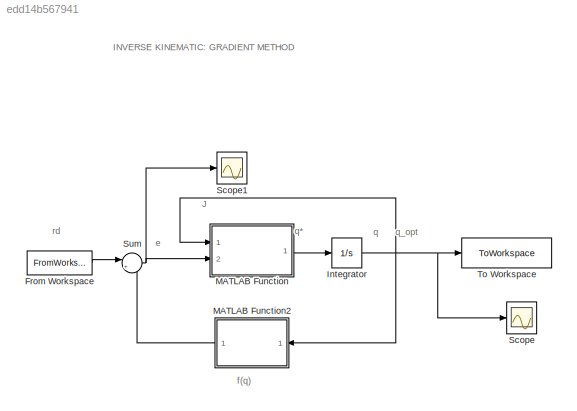
MODEL slx_edd14b567941
KIND model
CONFIG AbsTol = auto
CONFIG EnableMultiTasking = off
CONFIG FixedStep = auto
CONFIG MaxStep = auto
CONFIG MinStep = auto
CONFIG RelTol = 1e-3
CONFIG SampleTimeConstraint = Unconstrained
CONFIG Solver = VariableStepAuto
CONFIG SolverName = VariableStepAuto
CONFIG StartTime = 0.0
CONFIG StopTime = 6.0
BLOCK [FromWorkspace] From Workspace
  SampleTime = timeStep
  VariableName = r_d_polar_2RP
  ZeroCross = on
BLOCK [Integrator] Integrator
  InitialCondition = q_0_polar_2RP
  Ports = [1, 1]
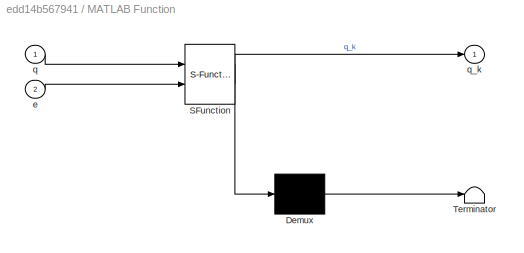
BLOCK [SubSystem] MATLAB Function
  ErrorFcn = Stateflow.Translate.translate
  PermitHierarchicalResolution = ExplicitOnly
  Ports = [2, 1]
  RequestExecContextInheritance = off
  SFBlockType = MATLAB Function
  TreatAsAtomicUnit = on
BLOCK [Demux] MATLAB Function/ Demux 
  Outputs = 1
  Ports = [1, 1]
BLOCK [S-Function] MATLAB Function/ SFunction 
  EnableBusSupport = on
  FunctionName = sf_sfun
  PortCounts = [2 2]
  Ports = [2, 2]
  SFcnIsStateOwnerBlock = off
  SFunctionDeploymentMode = off
  Tag = Stateflow S-Function 2
BLOCK [Terminator] MATLAB Function/ Terminator 
BLOCK [Inport] MATLAB Function/e
  IconDisplay = Port number
  Port = 2
BLOCK [Inport] MATLAB Function/q
  IconDisplay = Port number
BLOCK [Outport] MATLAB Function/q_k
  IconDisplay = Port number
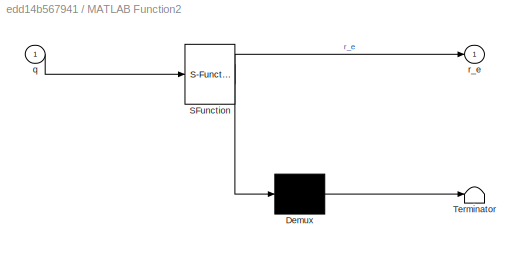
BLOCK [SubSystem] MATLAB Function2
  ErrorFcn = Stateflow.Translate.translate
  PermitHierarchicalResolution = ExplicitOnly
  Ports = [1, 1]
  RequestExecContextInheritance = off
  SFBlockType = MATLAB Function
  TreatAsAtomicUnit = on
BLOCK [Demux] MATLAB Function2/ Demux 
  Outputs = 1
  Ports = [1, 1]
BLOCK [S-Function] MATLAB Function2/ SFunction 
  EnableBusSupport = on
  FunctionName = sf_sfun
  PortCounts = [1 2]
  Ports = [1, 2]
  SFcnIsStateOwnerBlock = off
  SFunctionDeploymentMode = off
  Tag = Stateflow S-Function 3
BLOCK [Terminator] MATLAB Function2/ Terminator 
BLOCK [Inport] MATLAB Function2/q
  IconDisplay = Port number
BLOCK [Outport] MATLAB Function2/r_e
  IconDisplay = Port number
BLOCK [Scope] Scope
  Floating = off
  NumInputPorts = 1
  Ports = [1]
  ScopeSpecificationString = Simulink.scopes.TimeScopeBlockCfg('CurrentConfiguration', extmgr.ConfigurationSet(extmgr.Configuration('Core','General UI',true),extmgr.Configuration('Core','Source UI',true),extmgr.Configuration('Sources','WiredSimulink',true),extmgr.Configuration('Visuals','Time Domain',true,'SerializedDisplays',{struct('MinYLimReal','0.68769','MaxYLimReal','1.66892','YLabelReal','','MinYLimMag','0.68769','MaxYL...<+1360ch>
BLOCK [Scope] Scope1
  Floating = off
  NumInputPorts = 1
  Ports = [1]
  ScopeSpecificationString = Simulink.scopes.TimeScopeBlockCfg('CurrentConfiguration', extmgr.ConfigurationSet(extmgr.Configuration('Core','General UI',true),extmgr.Configuration('Core','Source UI',true),extmgr.Configuration('Sources','WiredSimulink',true,'DataLoggingVariableName','ScopeData1'),extmgr.Configuration('Visuals','Time Domain',true,'SerializedDisplays',{struct('MinYLimReal','-0.125','MaxYLimReal','1.125','YLabelRe...<+1368ch>
BLOCK [Sum] Sum
  IconShape = round
  InputSameDT = off
  Inputs = |+-
  OutDataTypeStr = Inherit: Inherit via internal rule
  Ports = [2, 1]
  SaturateOnIntegerOverflow = off
BLOCK [ToWorkspace] To Workspace
  FixptAsFi = on
  MaxDataPoints = inf
  Ports = [1]
  SampleTime = -1
  SaveFormat = Timeseries
  VariableName = q_polar_2RP
ANNOTATION (root): INVERSE KINEMATIC: GRADIENT METHOD
ANNOTATION (root): J
ANNOTATION (root): e
ANNOTATION (root): f(q)
ANNOTATION (root): q
ANNOTATION (root): q*
ANNOTATION (root): q_opt
ANNOTATION (root): rd
LINE From Workspace:1 -> Sum:1
NET Integrator:1 -> MATLAB Function2:1, MATLAB Function:1, Scope:1, To Workspace:1
LINE MATLAB Function2:1 -> Sum:2
LINE MATLAB Function:1 -> Integrator:1
NET Sum:1 -> MATLAB Function:2, Scope1:1
note: NET lines group one-source signal fan-out (src -> all destinations, sorted); 1:1 wires keep LINE
CHART MATLAB Function states=1 transitions=1
  STATE_LABEL 'eML_blk_kernel()'
  STATE_LABEL "SCRIPT:\nfunction q_k = J_r(q,e)\n% GRADIENT\nalpha =  0.7;\nJ_q = [-q(3)*sin(q(1))*sin(q(2)) q(3)*cos(q(1))*cos(q(2)) cos(q(1))*sin(q(2));\n    q(3)*cos(q(1))*sin(q(2)) q(3)*cos(q(2))*sin(q(1)) sin(q(1))*sin(q(2));\n    0 -q(3)*sin(q(2)) cos(q(2))];\nq_k = alpha * J_q' * e;\n\n% NEWTON\n% Jq = [-q(3)*sin(q(1))*sin(q(2)) q(3)*cos(q(1))*cos(q(2)) cos(q(1))*sin(q(2));\n%     q(3)*cos(q(1))*sin(q(2)) q(3)*cos(q...<+93ch>"
CHART MATLAB Function2 states=1 transitions=1
  STATE_LABEL 'eML_blk_kernel()'
  STATE_LABEL 'SCRIPT:\nfunction r_e = F_r(q)\n%POLAR ROBOT (2R P)\nr_e = [q(3)*cos(q(1))*sin(q(2));\n    q(3)*sin(q(1))*sin(q(2));\n    q(3)*cos(q(2))+0.5];\n'
